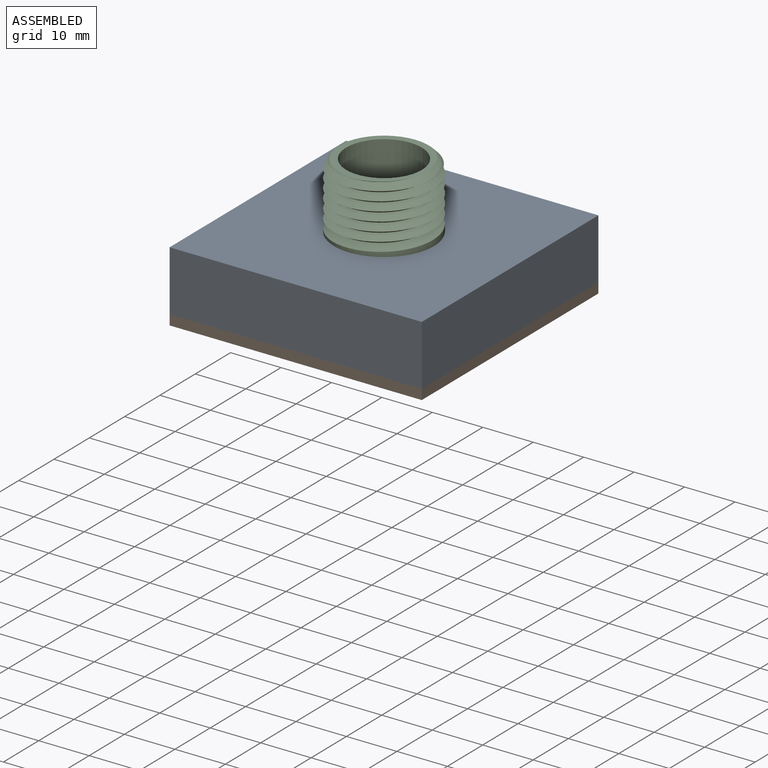
[diagram: assembled view]
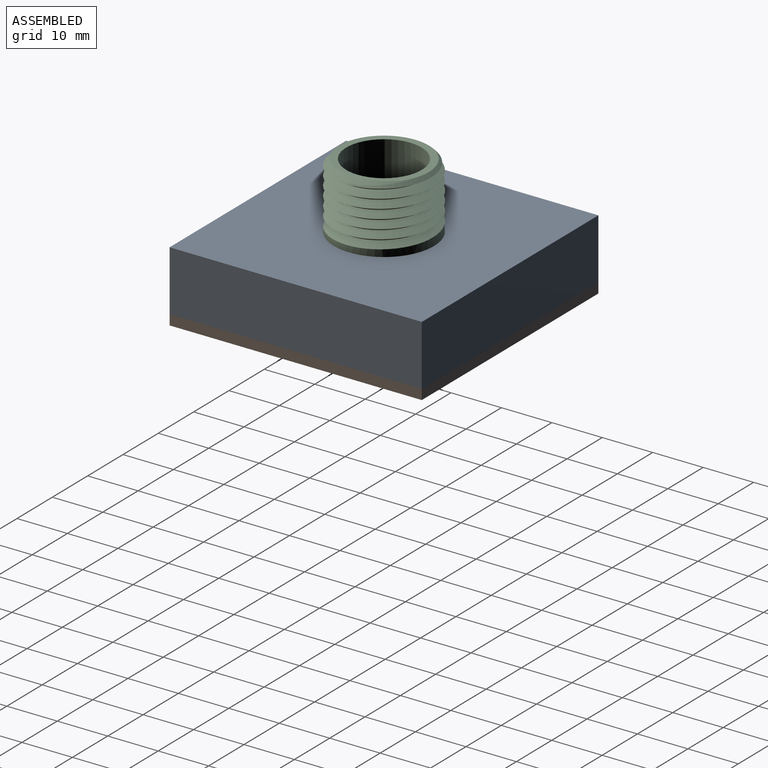
[diagram: assembled view, second angle]
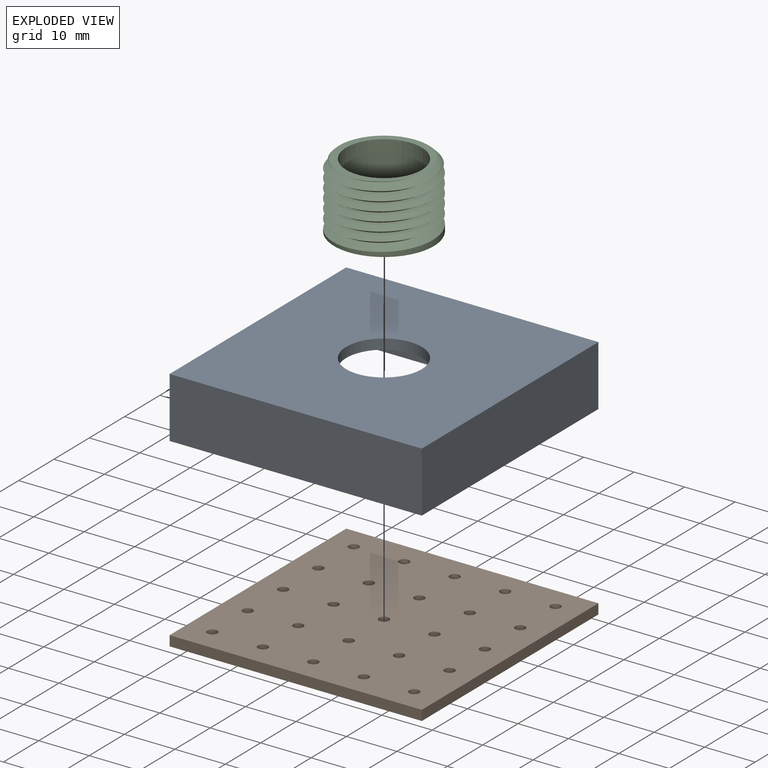
[diagram: exploded view]
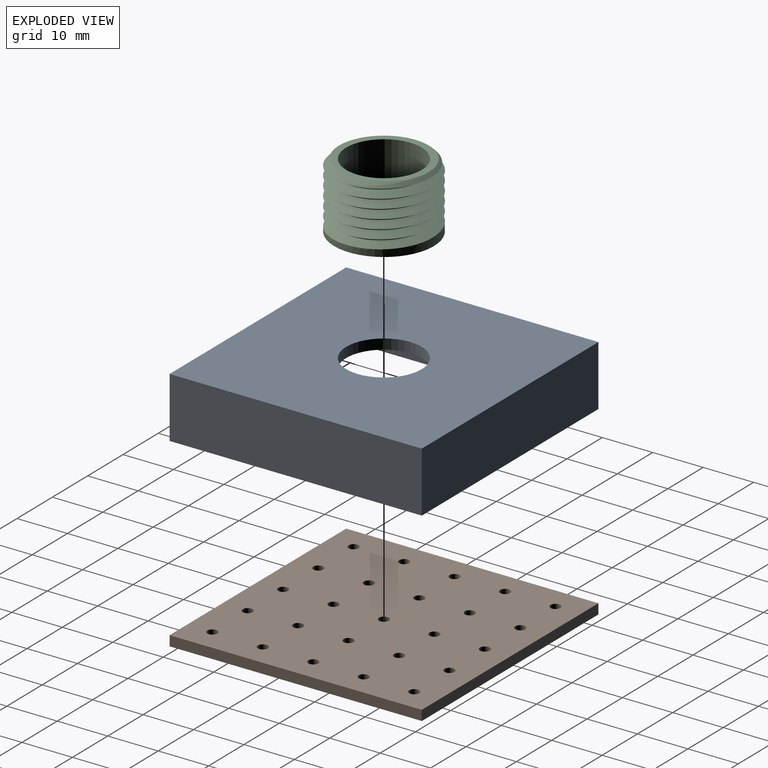
[diagram: exploded view, second angle]
ASSEMBLY  parts=3 mates=4
PART A: 12 faces, bbox 50x50x12 mm
  f0: plane 50x12mm, normal (0,-1,0), area 600mm2, adj f1,f4,f5,f11
  f1: plane 50x12mm, normal (1,0,0), area 600mm2, adj f0,f2,f5,f11
  f2: plane 50x12mm, normal (0,1,0), area 600mm2, adj f1,f4,f5,f11
  f3: cylinder r=7.5mm len=15mm, axis (0,0,1), area 94.2mm2, adj f5,f6
  f4: plane 50x12mm, normal (-1,0,0), area 600mm2, adj f0,f2,f5,f11
  f5: plane 50x50mm, normal (0,0,-1), area 2323.3mm2, adj f0,f1,f2,f3,f4
  f6: plane 46x46mm, normal (0,0,1), area 1939.3mm2, adj f3,f7,f8,f9,f10
  f7: plane 46x10mm, normal (-1,0,0), area 460mm2, adj f6,f8,f10,f11
  f8: plane 46x10mm, normal (0,1,0), area 460mm2, adj f6,f7,f9,f11
  f9: plane 46x10mm, normal (1,0,0), area 460mm2, adj f6,f8,f10,f11
  f10: plane 46x10mm, normal (0,-1,0), area 460mm2, adj f6,f7,f9,f11
  f11: plane 50x50mm, normal (0,0,1), area 384mm2, adj f0,f1,f2,f4,f7,f8,f9,f10
PART B: 31 faces, bbox 50x50x2 mm
  f0: plane 50x2mm, normal (0,1,0), area 100mm2, adj f1,f3,f4,f5
  f1: plane 50x2mm, normal (-1,0,0), area 100mm2, adj f0,f2,f4,f5
  f2: plane 50x2mm, normal (0,-1,0), area 100mm2, adj f1,f3,f4,f5
  f3: plane 50x2mm, normal (1,0,0), area 100mm2, adj f0,f2,f4,f5
  f4: plane 50x50mm, normal (0,0,1), area 2421.5mm2, adj f0,f1,f2,f3,f6,f7,f8,f9
  f5: plane 50x50mm, normal (0,0,-1), area 2421.5mm2, adj f0,f1,f2,f3,f6,f7,f8,f9
  f6: cylinder r=1mm len=2mm, axis (0,0,1), area 12.6mm2, adj f4,f5
  f7: cylinder r=1mm len=2mm, axis (0,0,1), area 12.6mm2, adj f4,f5
  f8: cylinder r=1mm len=2mm, axis (0,0,1), area 12.6mm2, adj f4,f5
  f9: cylinder r=1mm len=2mm, axis (0,0,1), area 12.6mm2, adj f4,f5
  f10: cylinder r=1mm len=2mm, axis (0,0,1), area 12.6mm2, adj f4,f5
  f11: cylinder r=1mm len=2mm, axis (0,0,1), area 12.6mm2, adj f4,f5
  f12: cylinder r=1mm len=2mm, axis (0,0,1), area 12.6mm2, adj f4,f5
  f13: cylinder r=1mm len=2mm, axis (0,0,1), area 12.6mm2, adj f4,f5
  f14: cylinder r=1mm len=2mm, axis (0,0,1), area 12.6mm2, adj f4,f5
  f15: cylinder r=1mm len=2mm, axis (0,0,1), area 12.6mm2, adj f4,f5
  f16: cylinder r=1mm len=2mm, axis (0,0,1), area 12.6mm2, adj f4,f5
  f17: cylinder r=1mm len=2mm, axis (0,0,1), area 12.6mm2, adj f4,f5
  f18: cylinder r=1mm len=2mm, axis (0,0,1), area 12.6mm2, adj f4,f5
  f19: cylinder r=1mm len=2mm, axis (0,0,1), area 12.6mm2, adj f4,f5
  f20: cylinder r=1mm len=2mm, axis (0,0,1), area 12.6mm2, adj f4,f5
  f21: cylinder r=1mm len=2mm, axis (0,0,1), area 12.6mm2, adj f4,f5
  f22: cylinder r=1mm len=2mm, axis (0,0,1), area 12.6mm2, adj f4,f5
  f23: cylinder r=1mm len=2mm, axis (0,0,1), area 12.6mm2, adj f4,f5
  f24: cylinder r=1mm len=2mm, axis (0,0,1), area 12.6mm2, adj f4,f5
  f25: cylinder r=1mm len=2mm, axis (0,0,1), area 12.6mm2, adj f4,f5
  f26: cylinder r=1mm len=2mm, axis (0,0,1), area 12.6mm2, adj f4,f5
  f27: cylinder r=1mm len=2mm, axis (0,0,1), area 12.6mm2, adj f4,f5
  f28: cylinder r=1mm len=2mm, axis (0,0,1), area 12.6mm2, adj f4,f5
  f29: cylinder r=1mm len=2mm, axis (0,0,1), area 12.6mm2, adj f4,f5
  f30: cylinder r=1mm len=2mm, axis (0,0,1), area 12.6mm2, adj f4,f5
PART C: 8 faces, bbox 20x23.1x14.4 mm
  f0: cylinder r=7.5mm len=15mm, axis (0,0,-1), area 612.6mm2, adj f2,f3
  f1: cylinder r=9.9mm len=19.8mm, axis (0,0,-1), area 11.9mm2, adj f3,f4,f5,f6,f7
  f2: plane 18.01x17.48mm, normal (0,0,1), area 66.7mm2, adj f0,f4,f5,f7
  f3: plane 19.8x19.8mm, normal (0,0,-1), area 131.2mm2, adj f0,f1,f5
  f4: cone r=8.9mm half-angle=45deg, axis (0,0,-1), area 26.8mm2, adj f1,f2,f5,f7
  f5: bspline ~22.86x19.8mm, area 693mm2, adj f1,f2,f3,f4,f6,f7
  f6: plane 1.8x1.35mm, normal (-0.87,-0.5,0), area 1.4mm2, adj f1,f5,f7
  f7: bspline ~22.86x19.8mm, area 632.9mm2, adj f1,f2,f4,f5,f6
PLACE A rot(axis=(1,0,0),180deg) t=(3.03,54.88,-30.25)mm
PLACE B rot(axis=(1,0,0),180deg) t=(-21.97,79.88,-40.25)mm
PLACE C t=(3.03,54.88,-28.25)mm
MATE cylindrical A.f3 <-> C.f0  axis (0,0,-1) through (3.03,54.88,-29.25)mm
MATE fastened B.f5 <-> A.f11  axis (0,0,-1) through (28.03,29.88,-40.25)mm
MATE planar A.f3 <-> B.f17  axis (0,0,-1) through (3.03,54.88,-40.25)mm
MATE fastened A.f3 <-> C.f0  axis (0,0,1) through (3.03,54.88,-28.25)mm
